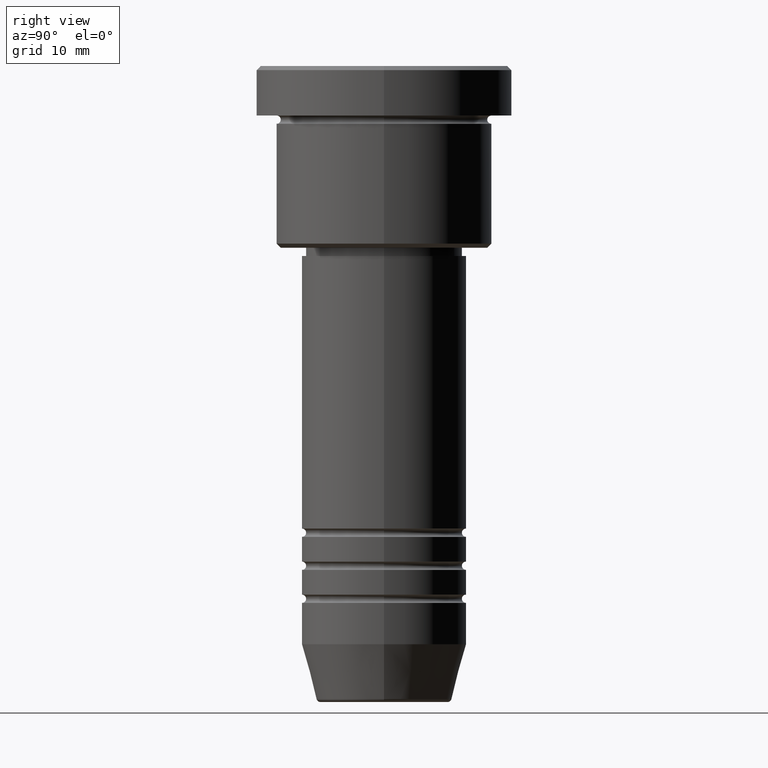
[diagram: clean part render]
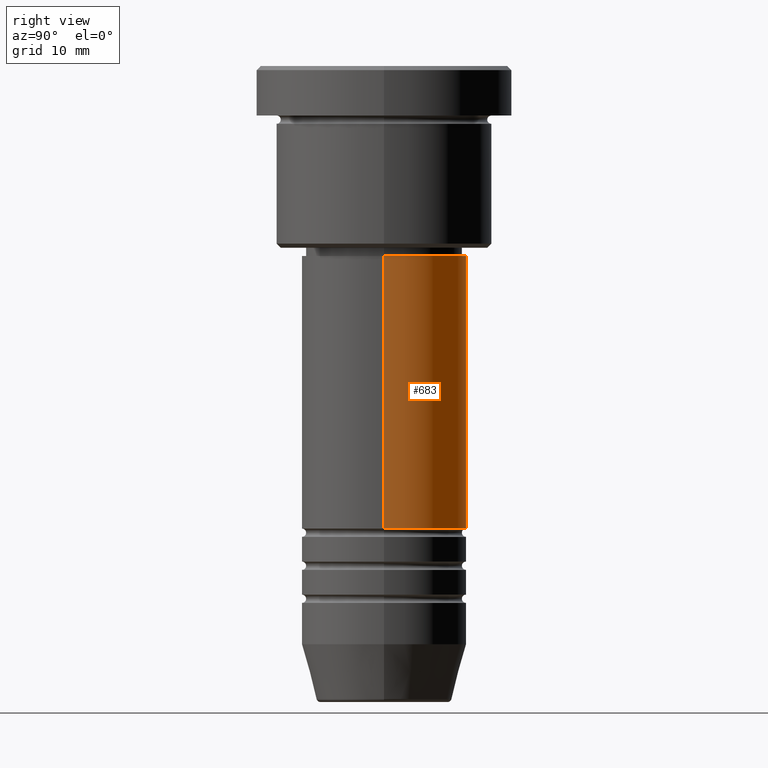
[diagram: same view with one face highlighted and labeled with its STEP entity id]
A machine part, right view. The second image highlights one B-rep face of the part: STEP entity #683.
In plain terms, the highlighted cylindrical surface (partial cylindrical patch) has radius 10 mm, axis along (-0, -0, 1).
Its self-contained STEP definition (entity closure, byte-faithful):
#12 = CIRCLE ( 'NONE', #260, 10.00000000000000178 ) ;
#57 = VERTEX_POINT ( 'NONE', #155 ) ;
#105 = LINE ( 'NONE', #917, #1096 ) ;
#155 = CARTESIAN_POINT ( 'NONE',  ( 9.999999999999998224, 0.000000000000000000, -23.00000000000002842 ) ) ;
#162 = AXIS2_PLACEMENT_3D ( 'NONE', #276, #170, #343 ) ;
#168 = ORIENTED_EDGE ( 'NONE', *, *, #1029, .T. ) ;
#170 = DIRECTION ( 'NONE',  ( -0.000000000000000000, -0.000000000000000000, 1.000000000000000000 ) ) ;
#200 = DIRECTION ( 'NONE',  ( -0.000000000000000000, -0.000000000000000000, 1.000000000000000000 ) ) ;
#206 = DIRECTION ( 'NONE',  ( -0.000000000000000000, -0.000000000000000000, 1.000000000000000000 ) ) ;
#241 = EDGE_CURVE ( 'NONE', #505, #57, #105, .T. ) ;
#260 = AXIS2_PLACEMENT_3D ( 'NONE', #1023, #206, #569 ) ;
#276 = CARTESIAN_POINT ( 'NONE',  ( 0.000000000000000000, 0.000000000000000000, -23.00000000000002842 ) ) ;
#326 = CARTESIAN_POINT ( 'NONE',  ( -9.999999999999998224, 1.224646799147353256E-15, -23.00000000000002842 ) ) ;
#343 = DIRECTION ( 'NONE',  ( 1.000000000000000000, 0.000000000000000000, 0.000000000000000000 ) ) ;
#355 = CARTESIAN_POINT ( 'NONE',  ( -10.00000000000000000, 1.224646799147353256E-15, 0.000000000000000000 ) ) ;
#374 = ORIENTED_EDGE ( 'NONE', *, *, #241, .F. ) ;
#391 = CIRCLE ( 'NONE', #162, 9.999999999999998224 ) ;
#447 = ORIENTED_EDGE ( 'NONE', *, *, #631, .F. ) ;
#486 = VERTEX_POINT ( 'NONE', #326 ) ;
#505 = VERTEX_POINT ( 'NONE', #717 ) ;
#554 = CYLINDRICAL_SURFACE ( 'NONE', #715, 10.00000000000000000 ) ;
#563 = DIRECTION ( 'NONE',  ( 1.000000000000000000, 0.000000000000000000, 0.000000000000000000 ) ) ;
#568 = FACE_OUTER_BOUND ( 'NONE', #959, .T. ) ;
#569 = DIRECTION ( 'NONE',  ( 1.000000000000000000, 0.000000000000000000, 0.000000000000000000 ) ) ;
#631 = EDGE_CURVE ( 'NONE', #57, #486, #391, .T. ) ;
#683 = ADVANCED_FACE ( 'NONE', ( #568 ), #554, .T. ) ;
#688 = VERTEX_POINT ( 'NONE', #928 ) ;
#715 = AXIS2_PLACEMENT_3D ( 'NONE', #835, #200, #563 ) ;
#717 = CARTESIAN_POINT ( 'NONE',  ( 10.00000000000000178, 0.000000000000000000, -55.99999999999990052 ) ) ;
#741 = DIRECTION ( 'NONE',  ( -0.000000000000000000, -0.000000000000000000, 1.000000000000000000 ) ) ;
#819 = LINE ( 'NONE', #355, #966 ) ;
#823 = DIRECTION ( 'NONE',  ( -0.000000000000000000, -0.000000000000000000, 1.000000000000000000 ) ) ;
#835 = CARTESIAN_POINT ( 'NONE',  ( 0.000000000000000000, 0.000000000000000000, 0.000000000000000000 ) ) ;
#917 = CARTESIAN_POINT ( 'NONE',  ( 10.00000000000000000, 0.000000000000000000, 0.000000000000000000 ) ) ;
#923 = EDGE_CURVE ( 'NONE', #688, #486, #819, .T. ) ;
#928 = CARTESIAN_POINT ( 'NONE',  ( -10.00000000000000178, 1.224646799147353454E-15, -55.99999999999990052 ) ) ;
#959 = EDGE_LOOP ( 'NONE', ( #168, #1050, #447, #374 ) ) ;
#966 = VECTOR ( 'NONE', #823, 1000.000000000000000 ) ;
#1023 = CARTESIAN_POINT ( 'NONE',  ( 0.000000000000000000, 0.000000000000000000, -55.99999999999990052 ) ) ;
#1029 = EDGE_CURVE ( 'NONE', #505, #688, #12, .T. ) ;
#1050 = ORIENTED_EDGE ( 'NONE', *, *, #923, .T. ) ;
#1096 = VECTOR ( 'NONE', #741, 1000.000000000000000 ) ;